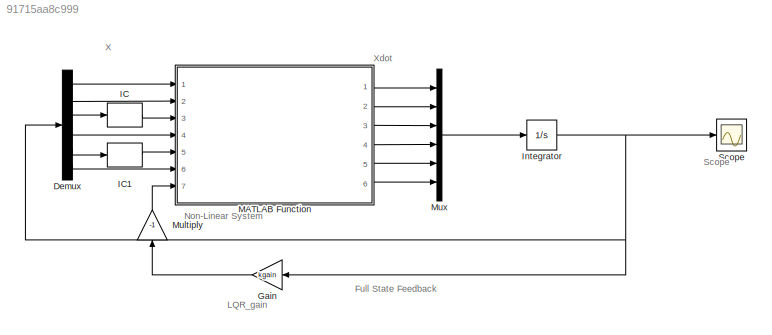
MODEL slx_91715aa8c999
KIND model
CONFIG AbsTol = auto
CONFIG EnableMultiTasking = off
CONFIG FixedStep = auto
CONFIG MaxStep = auto
CONFIG MinStep = auto
CONFIG RelTol = 1e-3
CONFIG SampleTimeConstraint = Unconstrained
CONFIG SolverName = VariableStepAuto
CONFIG StartTime = 0.0
CONFIG StopTime = 10.0
BLOCK [Demux] Demux
  Outputs = 6
  Ports = [1, 6]
BLOCK [Gain] Gain
  Gain = kgain
  Multiplication = Matrix(K*u)
  NameLocation = top
BLOCK [InitialCondition] IC
  Value = pi/6
BLOCK [InitialCondition] IC1
  Value = pi/12
BLOCK [Integrator] Integrator
  Ports = [1, 1]
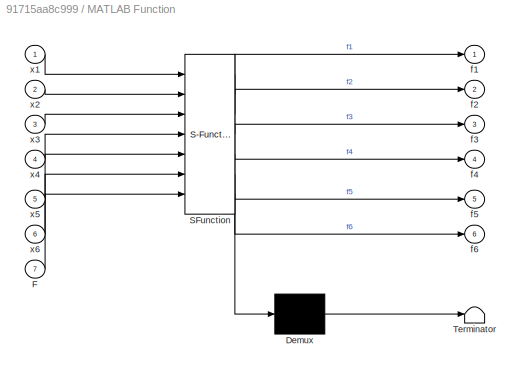
BLOCK [SubSystem] MATLAB Function
  ErrorFcn = Stateflow.Translate.translate
  PermitHierarchicalResolution = ExplicitOnly
  Ports = [7, 6]
  RequestExecContextInheritance = off
  SFBlockType = MATLAB Function
  TreatAsAtomicUnit = on
BLOCK [Demux] MATLAB Function/ Demux 
  Outputs = 1
  Ports = [1, 1]
BLOCK [S-Function] MATLAB Function/ SFunction 
  EnableBusSupport = on
  FunctionName = sf_sfun
  PortCounts = [7 7]
  Ports = [7, 7]
  SFcnIsStateOwnerBlock = off
  SFunctionDeploymentMode = off
  Tag = Stateflow S-Function 2
BLOCK [Terminator] MATLAB Function/ Terminator 
BLOCK [Inport] MATLAB Function/F
  Port = 7
BLOCK [Outport] MATLAB Function/f1
BLOCK [Outport] MATLAB Function/f2
  Port = 2
BLOCK [Outport] MATLAB Function/f3
  Port = 3
BLOCK [Outport] MATLAB Function/f4
  Port = 4
BLOCK [Outport] MATLAB Function/f5
  Port = 5
BLOCK [Outport] MATLAB Function/f6
  Port = 6
BLOCK [Inport] MATLAB Function/x1
BLOCK [Inport] MATLAB Function/x2
  Port = 2
BLOCK [Inport] MATLAB Function/x3
  Port = 3
BLOCK [Inport] MATLAB Function/x4
  Port = 4
BLOCK [Inport] MATLAB Function/x5
  Port = 5
BLOCK [Inport] MATLAB Function/x6
  Port = 6
BLOCK [Gain] Multiply
  Gain = -1
  NameLocation = right
BLOCK [Mux] Mux
  DisplayOption = bar
  Inputs = 6
  Ports = [6, 1]
BLOCK [Scope] Scope
  Floating = off
  NumInputPorts = 1
  Ports = [1]
  ScopeSpecificationString = Simulink.scopes.TimeScopeBlockCfg('CurrentConfiguration', extmgr.ConfigurationSet(extmgr.Configuration('Core','General UI',true),extmgr.Configuration('Core','Source UI',true),extmgr.Configuration('Sources','WiredSimulink',true),extmgr.Configuration('Visuals','Time Domain',true,'SerializedDisplays',{struct('MinYLimReal','-0.00004','MaxYLimReal','0.00009','YLabelReal','','MinYLimMag','0.00000','MaxY...<+1560ch>
ANNOTATION (root): Full State Feedback
ANNOTATION (root): LQR_gain
ANNOTATION (root): Non-Linear System
ANNOTATION (root): Scope
ANNOTATION (root): X
ANNOTATION (root): Xdot
LINE Demux:1 -> MATLAB Function:1
LINE Demux:2 -> MATLAB Function:2
LINE Demux:3 -> IC:1
LINE Demux:4 -> MATLAB Function:4
LINE Demux:5 -> IC1:1
LINE Demux:6 -> MATLAB Function:6
LINE Gain:1 -> Multiply:1
LINE IC1:1 -> MATLAB Function:5
LINE IC:1 -> MATLAB Function:3
NET Integrator:1 -> Demux:1, Gain:1, Scope:1
LINE MATLAB Function:1 -> Mux:1
LINE MATLAB Function:2 -> Mux:2
LINE MATLAB Function:3 -> Mux:3
LINE MATLAB Function:4 -> Mux:4
LINE MATLAB Function:5 -> Mux:5
LINE MATLAB Function:6 -> Mux:6
LINE Multiply:1 -> MATLAB Function:7
LINE Mux:1 -> Integrator:1
note: NET lines group one-source signal fan-out (src -> all destinations, sorted); 1:1 wires keep LINE
CHART MATLAB Function states=1 transitions=1
  STATE_LABEL 'eML_blk_kernel()'
  STATE_LABEL 'SCRIPT:\nfunction [f1,f2,f3,f4,f5,f6]  = nonlinearlqr(x1,x2,x3,x4,x5,x6,F)\n\nM = 1000; %mass of cart 1000\nm1 = 100; %mass of bob 1 100\nm2 = 100; %mass of bob 2 100\nl1 = 20;  %length of link of first pendulum 20\nl2 = 10;  %length of link of second pendulum 10\ng = 10; %acceleration due to gravitaion 9.81\n\nx = x1;\nx_dot = x2;\nt1 = x3;\nt1_dot = x4;\nt2 = x5;\nt2_dot = x6;\n\nxdd_n = F- m1*g*sin(t1)*cos(t1)-...<+364ch>'
CHART  states=0 transitions=0
